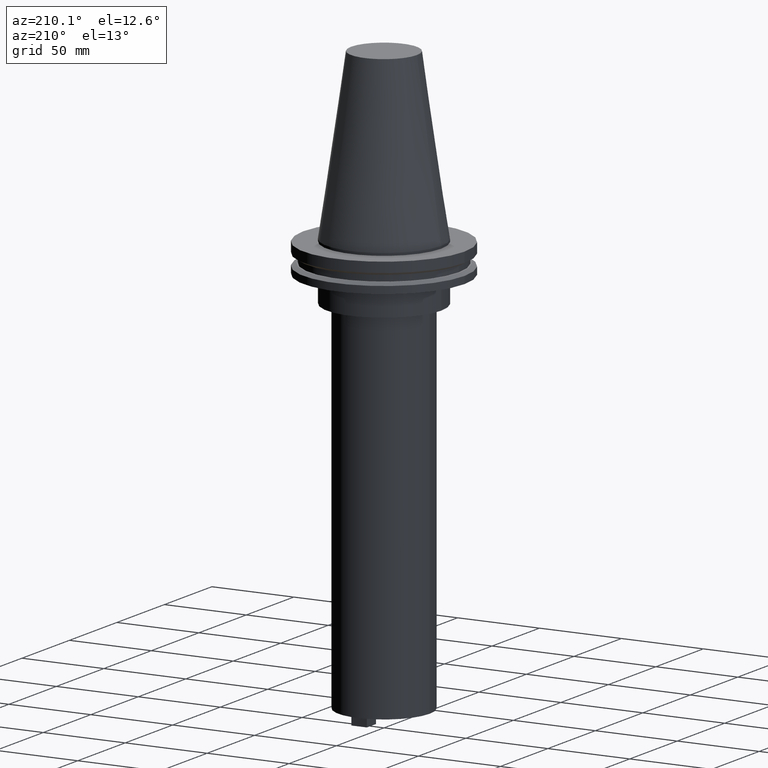
[diagram: clean part render]
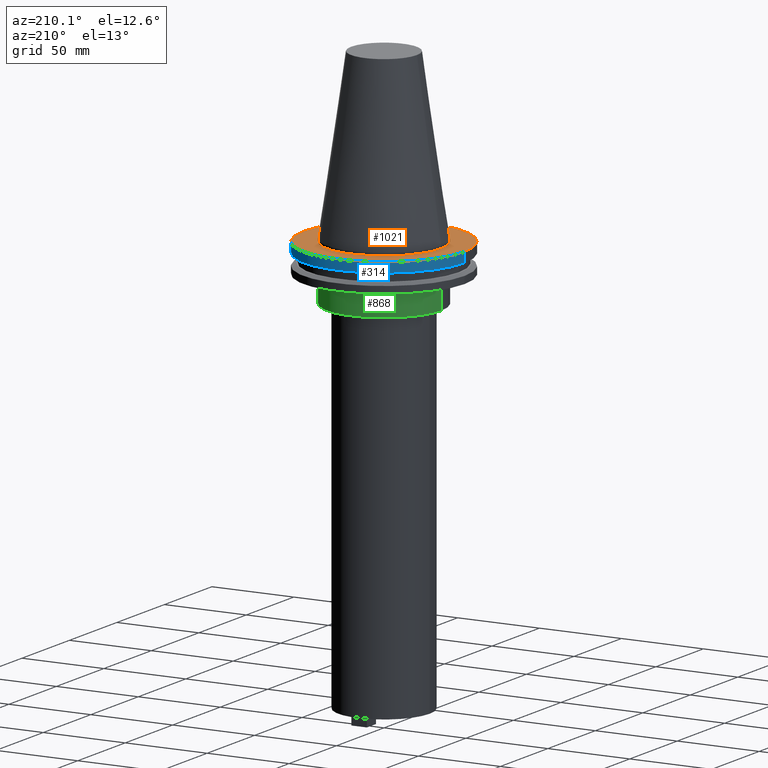
[diagram: same view with three faces highlighted in distinct colors, each labeled with its STEP entity id]
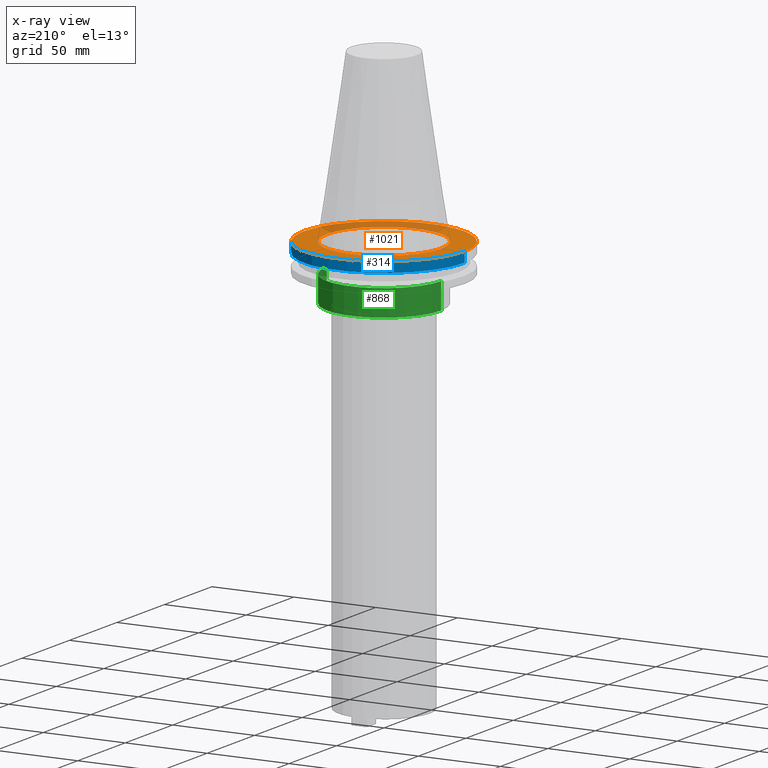
[diagram: x-ray of the same camera — body ghosted, the three highlighted faces saturated]
A machine part, auxiliary view with three faces highlighted in distinct colors.
The next image is the same camera in x-ray (body ghosted, the three faces saturated) — at least one of them is partly hidden behind the body in this view.
Their STEP definitions:

[orange] entity #1021 — the highlighted planar face has unit normal (0, 0, -1).
#48 = CARTESIAN_POINT ( 'NONE',  ( 49.21499999999999631, 0.000000000000000000, -1.499999999999987566 ) ) ;
#106 = DIRECTION ( 'NONE',  ( 1.000000000000000000, 0.000000000000000000, 0.000000000000000000 ) ) ;
#114 = EDGE_CURVE ( 'NONE', #130, #570, #811, .T. ) ;
#124 = ORIENTED_EDGE ( 'NONE', *, *, #1042, .F. ) ;
#130 = VERTEX_POINT ( 'NONE', #945 ) ;
#135 = AXIS2_PLACEMENT_3D ( 'NONE', #977, #556, #488 ) ;
#233 = FACE_OUTER_BOUND ( 'NONE', #963, .T. ) ;
#297 = ORIENTED_EDGE ( 'NONE', *, *, #960, .T. ) ;
#321 = CARTESIAN_POINT ( 'NONE',  ( -34.92499999999999005, 4.277078946022130098E-15, -1.499999999999987566 ) ) ;
#358 = DIRECTION ( 'NONE',  ( -0.000000000000000000, -0.000000000000000000, 1.000000000000000000 ) ) ;
#405 = FACE_BOUND ( 'NONE', #597, .T. ) ;
#414 = AXIS2_PLACEMENT_3D ( 'NONE', #965, #1040, #550 ) ;
#465 = EDGE_CURVE ( 'NONE', #485, #687, #702, .T. ) ;
#482 = DIRECTION ( 'NONE',  ( -1.000000000000000000, 0.000000000000000000, -0.000000000000000000 ) ) ;
#485 = VERTEX_POINT ( 'NONE', #48 ) ;
#488 = DIRECTION ( 'NONE',  ( 1.000000000000000000, 0.000000000000000000, 0.000000000000000000 ) ) ;
#494 = CARTESIAN_POINT ( 'NONE',  ( 0.000000000000000000, 0.000000000000000000, -1.499999999999987566 ) ) ;
#550 = DIRECTION ( 'NONE',  ( 1.000000000000000000, 0.000000000000000000, 0.000000000000000000 ) ) ;
#556 = DIRECTION ( 'NONE',  ( -0.000000000000000000, -0.000000000000000000, 1.000000000000000000 ) ) ;
#570 = VERTEX_POINT ( 'NONE', #321 ) ;
#579 = AXIS2_PLACEMENT_3D ( 'NONE', #494, #903, #666 ) ;
#597 = EDGE_LOOP ( 'NONE', ( #637, #124 ) ) ;
#637 = ORIENTED_EDGE ( 'NONE', *, *, #114, .F. ) ;
#645 = CIRCLE ( 'NONE', #135, 34.92499999999999005 ) ;
#655 = CARTESIAN_POINT ( 'NONE',  ( 0.000000000000000000, 49.21499999999999631, -1.499999999999992895 ) ) ;
#666 = DIRECTION ( 'NONE',  ( 1.000000000000000000, 0.000000000000000000, 0.000000000000000000 ) ) ;
#687 = VERTEX_POINT ( 'NONE', #914 ) ;
#702 = CIRCLE ( 'NONE', #414, 49.21499999999999631 ) ;
#741 = PLANE ( 'NONE',  #906 ) ;
#804 = ORIENTED_EDGE ( 'NONE', *, *, #465, .T. ) ;
#811 = CIRCLE ( 'NONE', #1001, 34.92499999999999005 ) ;
#903 = DIRECTION ( 'NONE',  ( -0.000000000000000000, -0.000000000000000000, 1.000000000000000000 ) ) ;
#906 = AXIS2_PLACEMENT_3D ( 'NONE', #655, #986, #482 ) ;
#914 = CARTESIAN_POINT ( 'NONE',  ( -49.21499999999999631, 6.027099222003697826E-15, -1.499999999999987566 ) ) ;
#933 = CARTESIAN_POINT ( 'NONE',  ( 0.000000000000000000, 0.000000000000000000, -1.499999999999987566 ) ) ;
#945 = CARTESIAN_POINT ( 'NONE',  ( 34.92499999999999005, 0.000000000000000000, -1.499999999999987566 ) ) ;
#960 = EDGE_CURVE ( 'NONE', #687, #485, #1053, .T. ) ;
#963 = EDGE_LOOP ( 'NONE', ( #804, #297 ) ) ;
#965 = CARTESIAN_POINT ( 'NONE',  ( 0.000000000000000000, 0.000000000000000000, -1.499999999999987566 ) ) ;
#977 = CARTESIAN_POINT ( 'NONE',  ( 0.000000000000000000, 0.000000000000000000, -1.499999999999987566 ) ) ;
#986 = DIRECTION ( 'NONE',  ( 0.000000000000000000, 0.000000000000000000, -1.000000000000000000 ) ) ;
#1001 = AXIS2_PLACEMENT_3D ( 'NONE', #933, #358, #106 ) ;
#1021 = ADVANCED_FACE ( 'NONE', ( #405, #233 ), #741, .F. ) ;
#1040 = DIRECTION ( 'NONE',  ( -0.000000000000000000, -0.000000000000000000, 1.000000000000000000 ) ) ;
#1042 = EDGE_CURVE ( 'NONE', #570, #130, #645, .T. ) ;
#1053 = CIRCLE ( 'NONE', #579, 49.21499999999999631 ) ;

[blue] entity #314 — the highlighted cylindrical surface (partial cylindrical patch) has radius 49.215 mm, axis along (-0, -0, 1).
#3 = FACE_OUTER_BOUND ( 'NONE', #996, .T. ) ;
#22 = CIRCLE ( 'NONE', #640, 49.21500000000000341 ) ;
#48 = CARTESIAN_POINT ( 'NONE',  ( 49.21499999999999631, 0.000000000000000000, -1.499999999999987566 ) ) ;
#150 = DIRECTION ( 'NONE',  ( 1.000000000000000000, 0.000000000000000000, 0.000000000000000000 ) ) ;
#155 = ORIENTED_EDGE ( 'NONE', *, *, #465, .F. ) ;
#175 = CARTESIAN_POINT ( 'NONE',  ( 0.000000000000000000, 0.000000000000000000, 101.5999999999999943 ) ) ;
#236 = ORIENTED_EDGE ( 'NONE', *, *, #493, .T. ) ;
#244 = LINE ( 'NONE', #333, #443 ) ;
#307 = CARTESIAN_POINT ( 'NONE',  ( 49.21500000000000341, 0.000000000000000000, -7.602389855251287187 ) ) ;
#314 = ADVANCED_FACE ( 'NONE', ( #3 ), #659, .T. ) ;
#325 = ORIENTED_EDGE ( 'NONE', *, *, #931, .T. ) ;
#333 = CARTESIAN_POINT ( 'NONE',  ( 49.21499999999999631, 0.000000000000000000, 101.5999999999999943 ) ) ;
#365 = CARTESIAN_POINT ( 'NONE',  ( -49.21500000000000341, 6.027099222003699404E-15, -7.602389855251287187 ) ) ;
#391 = AXIS2_PLACEMENT_3D ( 'NONE', #175, #851, #486 ) ;
#414 = AXIS2_PLACEMENT_3D ( 'NONE', #965, #1040, #550 ) ;
#443 = VECTOR ( 'NONE', #1073, 1000.000000000000000 ) ;
#465 = EDGE_CURVE ( 'NONE', #485, #687, #702, .T. ) ;
#485 = VERTEX_POINT ( 'NONE', #48 ) ;
#486 = DIRECTION ( 'NONE',  ( 1.000000000000000000, 0.000000000000000000, 0.000000000000000000 ) ) ;
#493 = EDGE_CURVE ( 'NONE', #772, #687, #719, .T. ) ;
#528 = VECTOR ( 'NONE', #961, 1000.000000000000000 ) ;
#550 = DIRECTION ( 'NONE',  ( 1.000000000000000000, 0.000000000000000000, 0.000000000000000000 ) ) ;
#640 = AXIS2_PLACEMENT_3D ( 'NONE', #829, #1087, #150 ) ;
#659 = CYLINDRICAL_SURFACE ( 'NONE', #391, 49.21499999999999631 ) ;
#687 = VERTEX_POINT ( 'NONE', #914 ) ;
#702 = CIRCLE ( 'NONE', #414, 49.21499999999999631 ) ;
#719 = LINE ( 'NONE', #1057, #528 ) ;
#751 = ORIENTED_EDGE ( 'NONE', *, *, #954, .F. ) ;
#772 = VERTEX_POINT ( 'NONE', #365 ) ;
#829 = CARTESIAN_POINT ( 'NONE',  ( 0.000000000000000000, 0.000000000000000000, -7.602389855251287187 ) ) ;
#851 = DIRECTION ( 'NONE',  ( -0.000000000000000000, -0.000000000000000000, 1.000000000000000000 ) ) ;
#914 = CARTESIAN_POINT ( 'NONE',  ( -49.21499999999999631, 6.027099222003697826E-15, -1.499999999999987566 ) ) ;
#931 = EDGE_CURVE ( 'NONE', #991, #772, #22, .T. ) ;
#954 = EDGE_CURVE ( 'NONE', #991, #485, #244, .T. ) ;
#961 = DIRECTION ( 'NONE',  ( -0.000000000000000000, -0.000000000000000000, 1.000000000000000000 ) ) ;
#965 = CARTESIAN_POINT ( 'NONE',  ( 0.000000000000000000, 0.000000000000000000, -1.499999999999987566 ) ) ;
#991 = VERTEX_POINT ( 'NONE', #307 ) ;
#996 = EDGE_LOOP ( 'NONE', ( #325, #236, #155, #751 ) ) ;
#1040 = DIRECTION ( 'NONE',  ( -0.000000000000000000, -0.000000000000000000, 1.000000000000000000 ) ) ;
#1057 = CARTESIAN_POINT ( 'NONE',  ( -49.21499999999999631, 6.027099222003697826E-15, 101.5999999999999943 ) ) ;
#1073 = DIRECTION ( 'NONE',  ( -0.000000000000000000, -0.000000000000000000, 1.000000000000000000 ) ) ;
#1087 = DIRECTION ( 'NONE',  ( -0.000000000000000000, -0.000000000000000000, 1.000000000000000000 ) ) ;

[green] entity #868 — the highlighted cylindrical surface (partial cylindrical patch) has radius 34.925 mm, axis along (-0, -0, 1).
#20 = CARTESIAN_POINT ( 'NONE',  ( -34.92499999999999716, 4.277078946022130887E-15, -35.04999999999999716 ) ) ;
#112 = LINE ( 'NONE', #267, #209 ) ;
#148 = EDGE_CURVE ( 'NONE', #844, #1059, #112, .T. ) ;
#169 = DIRECTION ( 'NONE',  ( 1.000000000000000000, 0.000000000000000000, 0.000000000000000000 ) ) ;
#209 = VECTOR ( 'NONE', #858, 1000.000000000000000 ) ;
#212 = CARTESIAN_POINT ( 'NONE',  ( 0.000000000000000000, 0.000000000000000000, -35.04999999999999716 ) ) ;
#215 = CARTESIAN_POINT ( 'NONE',  ( -34.92499999999999716, 4.277078946022130887E-15, 101.5999999999999943 ) ) ;
#267 = CARTESIAN_POINT ( 'NONE',  ( 34.92499999999999716, 0.000000000000000000, 101.5999999999999943 ) ) ;
#281 = EDGE_CURVE ( 'NONE', #1059, #956, #665, .T. ) ;
#288 = FACE_OUTER_BOUND ( 'NONE', #390, .T. ) ;
#306 = ORIENTED_EDGE ( 'NONE', *, *, #148, .F. ) ;
#374 = CYLINDRICAL_SURFACE ( 'NONE', #1065, 34.92499999999999716 ) ;
#390 = EDGE_LOOP ( 'NONE', ( #643, #1045, #929, #306 ) ) ;
#436 = VECTOR ( 'NONE', #710, 1000.000000000000000 ) ;
#452 = VERTEX_POINT ( 'NONE', #20 ) ;
#467 = DIRECTION ( 'NONE',  ( -0.000000000000000000, -0.000000000000000000, 1.000000000000000000 ) ) ;
#536 = DIRECTION ( 'NONE',  ( 1.000000000000000000, 0.000000000000000000, 0.000000000000000000 ) ) ;
#544 = DIRECTION ( 'NONE',  ( 1.000000000000000000, 0.000000000000000000, 0.000000000000000000 ) ) ;
#595 = LINE ( 'NONE', #215, #436 ) ;
#599 = CARTESIAN_POINT ( 'NONE',  ( 0.000000000000000000, 0.000000000000000000, -19.04999999999999716 ) ) ;
#621 = AXIS2_PLACEMENT_3D ( 'NONE', #212, #467, #536 ) ;
#636 = CARTESIAN_POINT ( 'NONE',  ( 0.000000000000000000, 0.000000000000000000, 101.5999999999999943 ) ) ;
#642 = DIRECTION ( 'NONE',  ( -0.000000000000000000, -0.000000000000000000, 1.000000000000000000 ) ) ;
#643 = ORIENTED_EDGE ( 'NONE', *, *, #910, .T. ) ;
#665 = CIRCLE ( 'NONE', #775, 34.92499999999999716 ) ;
#673 = CARTESIAN_POINT ( 'NONE',  ( 34.92499999999999716, 0.000000000000000000, -19.04999999999999716 ) ) ;
#710 = DIRECTION ( 'NONE',  ( -0.000000000000000000, -0.000000000000000000, 1.000000000000000000 ) ) ;
#747 = DIRECTION ( 'NONE',  ( -0.000000000000000000, -0.000000000000000000, 1.000000000000000000 ) ) ;
#775 = AXIS2_PLACEMENT_3D ( 'NONE', #599, #747, #169 ) ;
#798 = CARTESIAN_POINT ( 'NONE',  ( 34.92499999999999716, 0.000000000000000000, -35.04999999999999716 ) ) ;
#813 = EDGE_CURVE ( 'NONE', #452, #956, #595, .T. ) ;
#817 = CIRCLE ( 'NONE', #621, 34.92499999999999716 ) ;
#844 = VERTEX_POINT ( 'NONE', #798 ) ;
#858 = DIRECTION ( 'NONE',  ( -0.000000000000000000, -0.000000000000000000, 1.000000000000000000 ) ) ;
#868 = ADVANCED_FACE ( 'NONE', ( #288 ), #374, .T. ) ;
#910 = EDGE_CURVE ( 'NONE', #844, #452, #817, .T. ) ;
#918 = CARTESIAN_POINT ( 'NONE',  ( -34.92499999999999716, 4.277078946022130887E-15, -19.04999999999999716 ) ) ;
#929 = ORIENTED_EDGE ( 'NONE', *, *, #281, .F. ) ;
#956 = VERTEX_POINT ( 'NONE', #918 ) ;
#1045 = ORIENTED_EDGE ( 'NONE', *, *, #813, .T. ) ;
#1059 = VERTEX_POINT ( 'NONE', #673 ) ;
#1065 = AXIS2_PLACEMENT_3D ( 'NONE', #636, #642, #544 ) ;